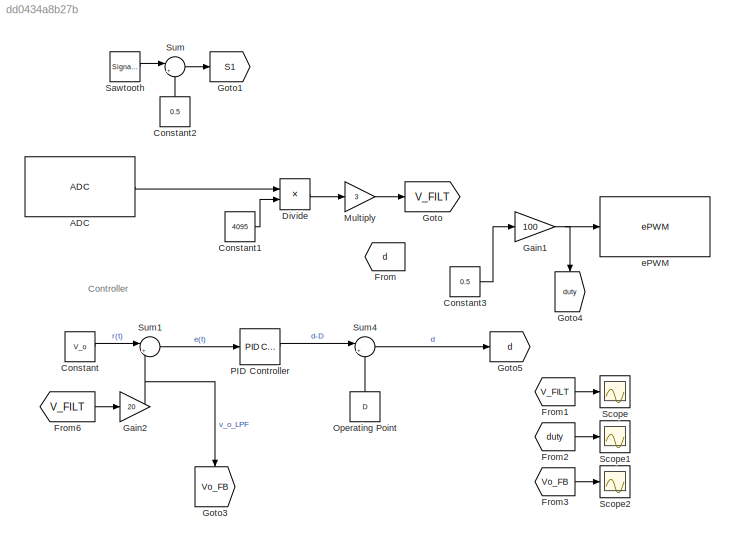
MODEL slx_dd0434a8b27b
KIND model
CONFIG AbsTol = auto
CONFIG EnableMultiTasking = on
CONFIG FixedStep = auto
CONFIG MaxStep = auto
CONFIG MinStep = auto
CONFIG RelTol = 1e-3
CONFIG SampleTimeConstraint = Unconstrained
CONFIG SolverName = FixedStepAuto
CONFIG StartTime = 0.0
CONFIG StopTime = Inf
BLOCK [Reference] ADC  REF=c2802xlib/ADC
  LibrarySourceBlock = c2837xDlib/ADC
  SourceBlock = c2802xlib/ADC
  SourceType = ADC Type 3-5
  UserDataPersistent = on
BLOCK [Constant] Constant
  Value = V_o
BLOCK [Constant] Constant1
  Value = 4095
BLOCK [Constant] Constant2
  Commented = on
  NameLocation = right
  Value = 0.5
BLOCK [Constant] Constant3
  Value = 0.5
BLOCK [Product] Divide
  Inputs = */
BLOCK [From] From
  GotoTag = d
BLOCK [From] From1
  GotoTag = V_FILT
BLOCK [From] From2
  GotoTag = duty
BLOCK [From] From3
  GotoTag = Vo_FB
BLOCK [From] From6
  GotoTag = V_FILT
BLOCK [Gain] Gain1
  Gain = 100
BLOCK [Gain] Gain2
  Gain = 20
BLOCK [Goto] Goto
  GotoTag = V_FILT
BLOCK [Goto] Goto1
  Commented = on
  GotoTag = S1
BLOCK [Goto] Goto3
  GotoTag = Vo_FB
  NameLocation = left
BLOCK [Goto] Goto4
  GotoTag = duty
  NameLocation = left
BLOCK [Goto] Goto5
  GotoTag = d
BLOCK [Gain] Multiply
  Gain = 3
BLOCK [Constant] Operating Point
  NameLocation = left
  Value = D
BLOCK [Reference] PID Controller  REF=slpidlib/PID Controller
  LibrarySourceBlock = simulink/Continuous/PID Controller
  SourceBlock = slpidlib/PID Controller
  SourceType = PID 1dof
BLOCK [SignalGenerator] Sawtooth
  Amplitude = 0.5
  Commented = on
  WaveForm = sawtooth
BLOCK [Scope] Scope
  Floating = off
  NumInputPorts = 1
  ScopeSpecificationString = Simulink.scopes.TimeScopeBlockCfg('CurrentConfiguration', extmgr.ConfigurationSet(extmgr.Configuration('Core','General UI',true),extmgr.Configuration('Core','Source UI',true),extmgr.Configuration('Sources','WiredSimulink',true),extmgr.Configuration('Visuals','Time Domain',true,'SerializedDisplays',{struct('MinYLimReal','-0.19112','MaxYLimReal','2.23288','YLabelReal','','MinYLimMag','0.00000','MaxY...<+1475ch>
BLOCK [Scope] Scope1
  Floating = off
  NumInputPorts = 1
  ScopeSpecificationString = Simulink.scopes.TimeScopeBlockCfg('CurrentConfiguration', extmgr.ConfigurationSet(extmgr.Configuration('Core','General UI',true),extmgr.Configuration('Core','Source UI',true),extmgr.Configuration('Sources','WiredSimulink',true,'DataLoggingVariableName','ScopeData1'),extmgr.Configuration('Visuals','Time Domain',true,'PlotType','Line','SerializedDisplays',{struct('MinYLimReal','40.00000','MaxYLimRea...<+1666ch>
BLOCK [Scope] Scope2
  Floating = off
  NumInputPorts = 1
  ScopeSpecificationString = Simulink.scopes.TimeScopeBlockCfg('CurrentConfiguration', extmgr.ConfigurationSet(extmgr.Configuration('Core','General UI',true),extmgr.Configuration('Core','Source UI',true),extmgr.Configuration('Sources','WiredSimulink',true,'DataLoggingVariableName','ScopeData2'),extmgr.Configuration('Visuals','Time Domain',true,'SerializedDisplays',{struct('MinYLimReal','-0.02015','MaxYLimReal','0.18132','YLab...<+1457ch>
BLOCK [Sum] Sum
  Commented = on
  Inputs = |++
BLOCK [Sum] Sum1
  Inputs = |+-
BLOCK [Sum] Sum4
  Inputs = |++
BLOCK [Reference] ePWM  REF=c2802xlib/ePWM
  LibrarySourceBlock = c2837xDlib/ePWM
  SourceBlock = c2802xlib/ePWM
  SourceType = ePWM Type 1-4
  UserDataPersistent = on
ANNOTATION (root): Controller
LINE ADC:1 -> Divide:1
LINE Constant1:1 -> Divide:2
LINE Constant2:1 -> Sum:2
LINE Constant3:1 -> Gain1:1
LINE Constant:1 -> Sum1:1
LINE Divide:1 -> Multiply:1
LINE From1:1 -> Scope:1
LINE From2:1 -> Scope1:1
LINE From3:1 -> Scope2:1
LINE From6:1 -> Gain2:1
NET Gain1:1 -> Goto4:1, ePWM:1
NET Gain2:1 -> Goto3:1, Sum1:2
LINE Multiply:1 -> Goto:1
LINE Operating Point:1 -> Sum4:2
LINE PID Controller:1 -> Sum4:1
LINE Sawtooth:1 -> Sum:1
LINE Sum1:1 -> PID Controller:1
LINE Sum4:1 -> Goto5:1
LINE Sum:1 -> Goto1:1
note: NET lines group one-source signal fan-out (src -> all destinations, sorted); 1:1 wires keep LINE
